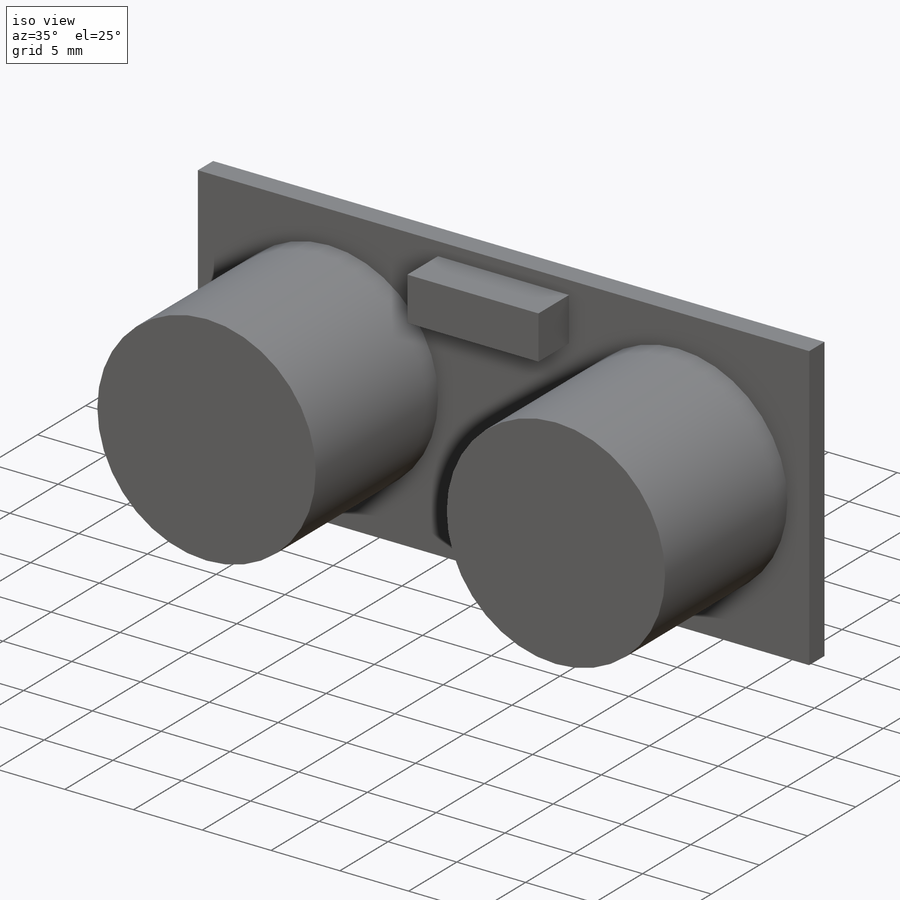
[diagram: iso view]
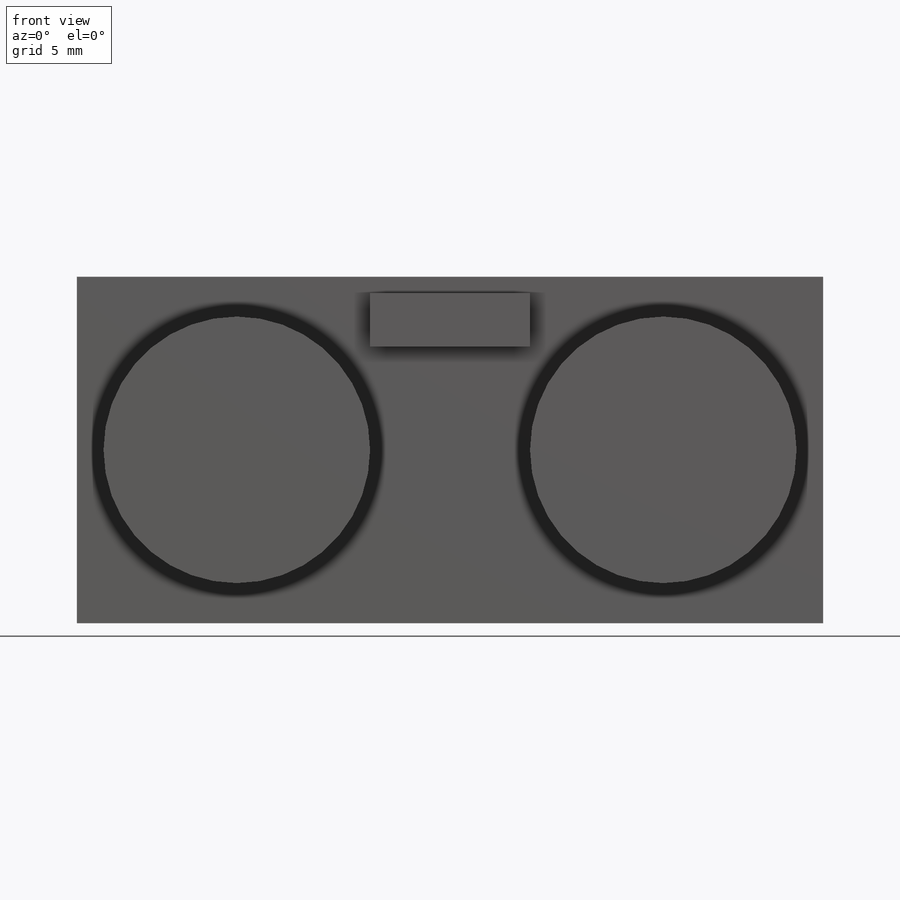
[diagram: front view]
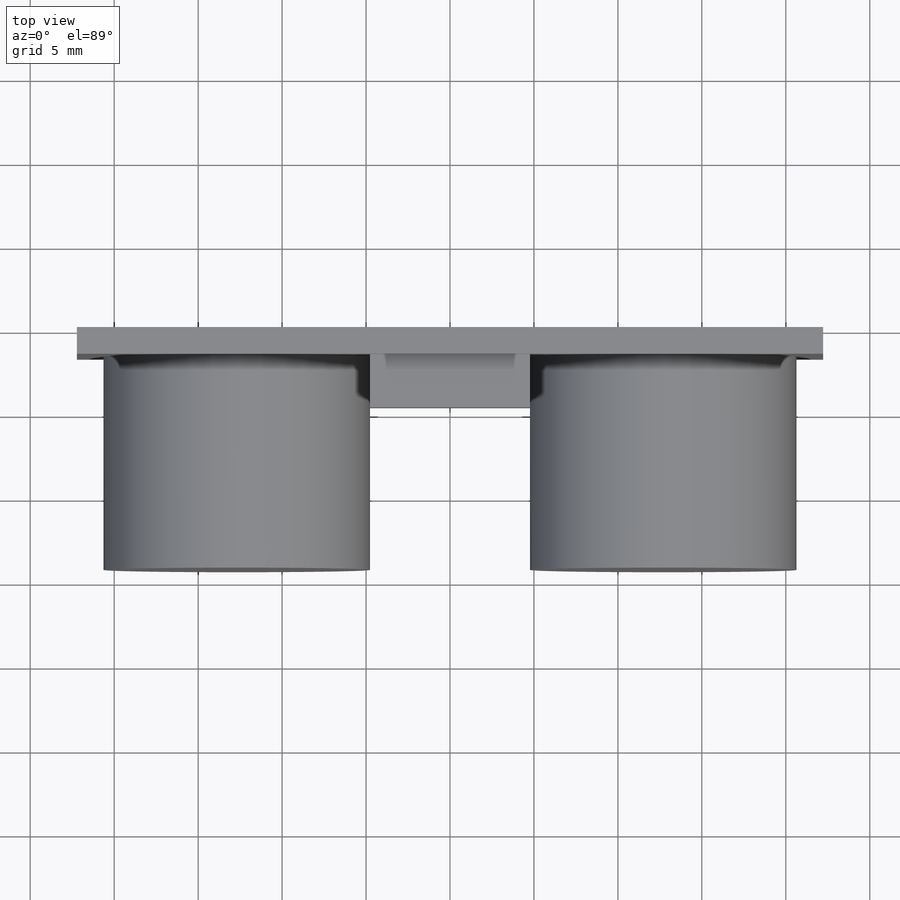
[diagram: top view]
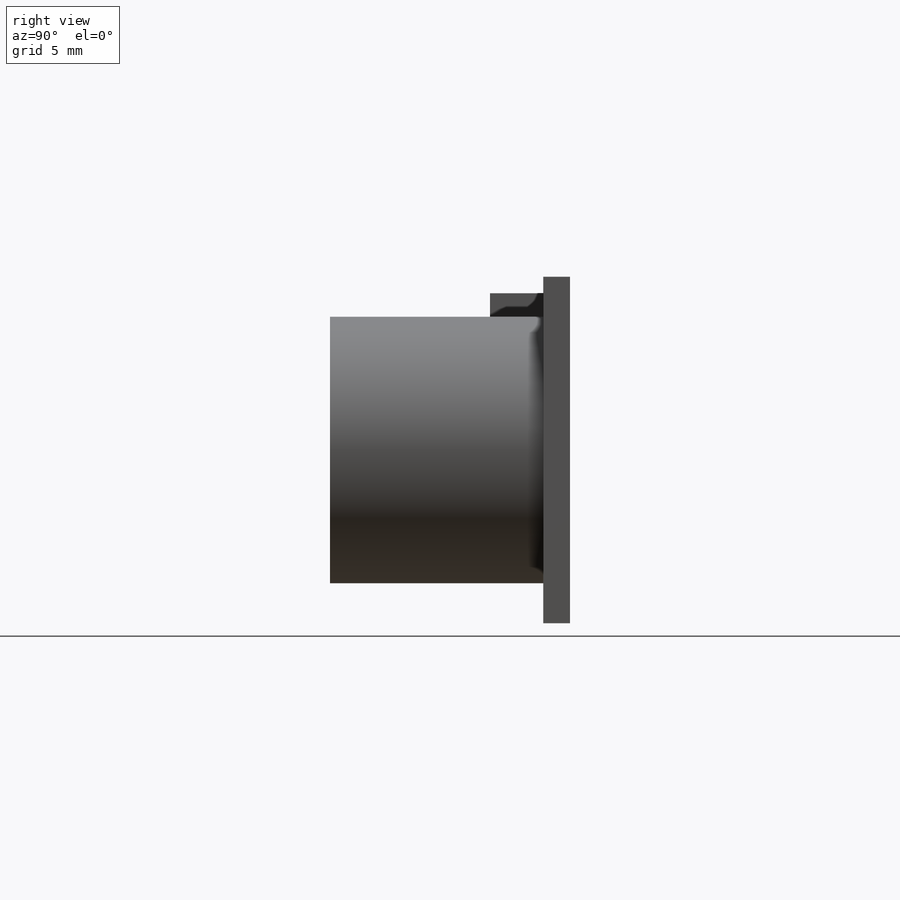
[diagram: right view]
SOLIDWORKS PART (.sldprt)
format: sldprt  version: not decoded by parser v0  size: 188,928 bytes
history: native  units: mm
features: sketch x3, extrude x3, material x1, mirror x1 (+11 scaffold rows collapsed)
feature tree (19):
  scaffold x11  (default folders/planes/origin — collapsed)
  material  "Material <not specified>"
  sketch  "Sketch1"  dims[D1=44.45mm D2=20.6375mm]
  extrude  "Boss-Extrude1"  Depth=1.5875mm
  sketch  "Sketch2"  dims[c1.D1=15.875mm c1.D3=15.875mm c1.D2=22.225mm c2.D3=12.7mm]
  extrude  "Boss-Extrude2"  Depth=12.7mm
  mirror  "Mirror1"
  sketch  "Sketch3"  dims[D1=9.525mm D2=3.175mm]
  extrude  "Boss-Extrude3"  Depth=3.175mm
decode coverage: 6 of 7 modeling features carry decoded parameters
note: suppression state not decoded; provenance and decode notes live in map.json
